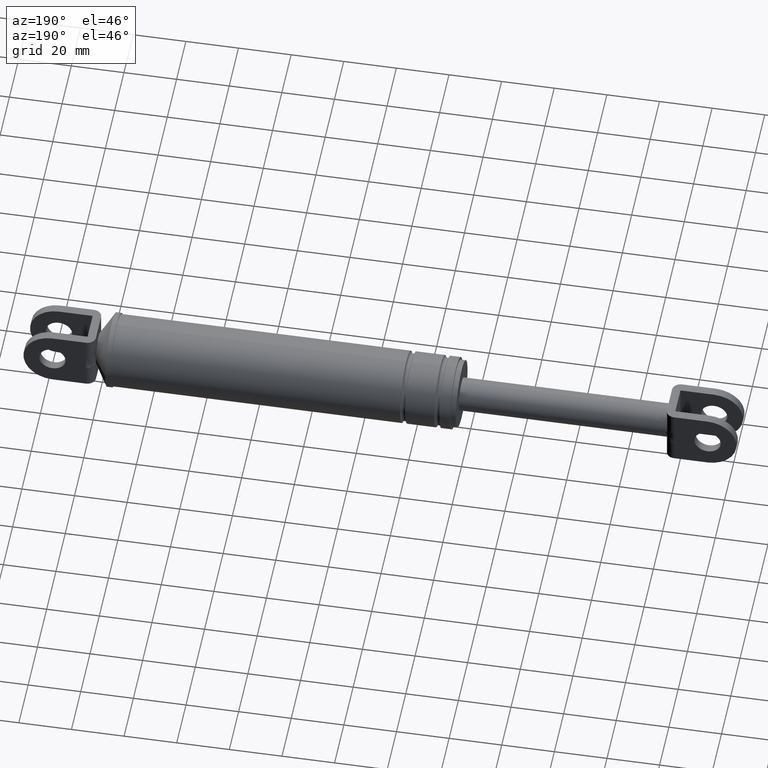
[diagram: clean part render]
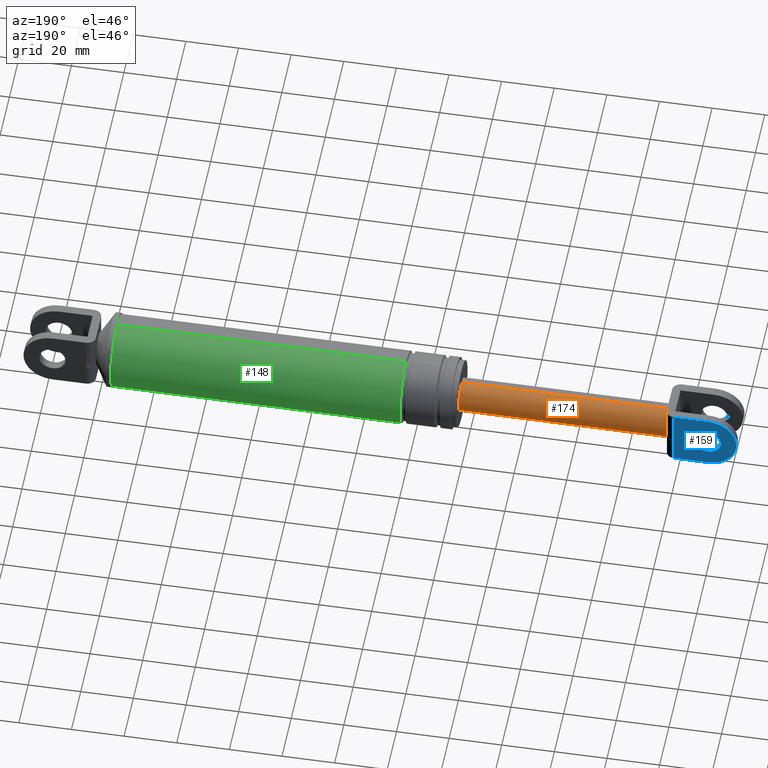
[diagram: same view with three faces highlighted in distinct colors, each labeled with its STEP entity id]
A machine part, auxiliary view with three faces highlighted in distinct colors.
Their STEP definitions:

[orange] entity #174 — the highlighted cylindrical surface (edge-blend (fillet) strip) has radius 6.25 mm, axis along (1, 0, 0).
#174=ADVANCED_FACE('',(#807),#806,.T.);
#806=CYLINDRICAL_SURFACE('',#1369,6.25000000000E+000);
#807=FACE_OUTER_BOUND('',#1370,.T.);
#1366=CARTESIAN_POINT('',(0.00000000000E+000,0.00000000000E+000,1.70729320502E+002));
#1367=DIRECTION('',(1.00000000000E+000,-0.00000000000E+000,-0.00000000000E+000));
#1368=DIRECTION('',(0.00000000000E+000,0.00000000000E+000,-1.00000000000E+000));
#1369=AXIS2_PLACEMENT_3D('',#1366,#1367,#1368);
#1370=EDGE_LOOP('',(#1688,#1689,#1690,#1691,#1692,#1693));
#1688=ORIENTED_EDGE('',*,*,#1850,.T.);
#1689=ORIENTED_EDGE('',*,*,#1860,.F.);
#1690=ORIENTED_EDGE('',*,*,#1823,.F.);
#1691=ORIENTED_EDGE('',*,*,#1844,.F.);
#1692=ORIENTED_EDGE('',*,*,#1816,.F.);
#1693=ORIENTED_EDGE('',*,*,#1861,.T.);
#1816=EDGE_CURVE('',#2630,#2637,#2638,.T.);
#1823=EDGE_CURVE('',#2684,#2685,#2686,.T.);
#1844=EDGE_CURVE('',#2637,#2684,#2824,.T.);
#1850=EDGE_CURVE('',#2855,#2854,#2862,.T.);
#1860=EDGE_CURVE('',#2685,#2854,#2926,.T.);
#1861=EDGE_CURVE('',#2630,#2855,#2932,.T.);
#2630=VERTEX_POINT('',#3433);
#2637=VERTEX_POINT('',#3438);
#2638=CIRCLE('',#3442,6.25000000000E+000);
#2684=VERTEX_POINT('',#3468);
#2685=VERTEX_POINT('',#3469);
#2686=CIRCLE('',#3473,6.25000000000E+000);
#2824=CIRCLE('',#3563,6.25000000000E+000);
#2854=VERTEX_POINT('',#3578);
#2855=VERTEX_POINT('',#3579);
#2862=CIRCLE('',#3587,6.25000000000E+000);
#2926=(BOUNDED_CURVE() B_SPLINE_CURVE(1,(#3620,#3621),.UNSPECIFIED.,.F.,.F.) B_SPLINE_CURVE_WITH_KNOTS((2,2),(8.33333332085E-002,9.16666666563E-001),.UNSPECIFIED.) CURVE() GEOMETRIC_REPRESENTATION_ITEM() RATIONAL_B_SPLINE_CURVE((1.00000000000E+000,1.00000000000E+000)) REPRESENTATION_ITEM('') );
#2932=(BOUNDED_CURVE() B_SPLINE_CURVE(1,(#3622,#3623),.UNSPECIFIED.,.F.,.F.) B_SPLINE_CURVE_WITH_KNOTS((2,2),(8.33333333333E-002,9.16666666667E-001),.UNSPECIFIED.) CURVE() GEOMETRIC_REPRESENTATION_ITEM() RATIONAL_B_SPLINE_CURVE((7.50000000000E-001,7.50000000000E-001)) REPRESENTATION_ITEM('') );
#3433=CARTESIAN_POINT('',(1.04446942787E+002,7.89135247850E-007,1.76979320502E+002));
#3438=CARTESIAN_POINT('',(1.04446942787E+002,5.49999700000E+000,1.73697911582E+002));
#3439=CARTESIAN_POINT('',(1.04446942787E+002,0.00000000000E+000,1.70729320502E+002));
#3440=DIRECTION('',(-1.00000000000E+000,0.00000000000E+000,0.00000000000E+000));
#3441=DIRECTION('',(-0.00000000000E+000,-0.00000000000E+000,-1.00000000000E+000));
#3442=AXIS2_PLACEMENT_3D('',#3439,#3440,#3441);
#3468=CARTESIAN_POINT('',(1.04446942787E+002,5.49999700000E+000,1.67760729422E+002));
#3469=CARTESIAN_POINT('',(1.04446942787E+002,-4.27327916267E-012,1.64479320502E+002));
#3470=CARTESIAN_POINT('',(1.04446942787E+002,0.00000000000E+000,1.70729320502E+002));
#3471=DIRECTION('',(-1.00000000000E+000,0.00000000000E+000,0.00000000000E+000));
#3472=DIRECTION('',(-0.00000000000E+000,8.79999520000E-001,-4.74974572793E-001));
#3473=AXIS2_PLACEMENT_3D('',#3470,#3471,#3472);
#3560=CARTESIAN_POINT('',(1.04446942787E+002,0.00000000000E+000,1.70729320502E+002));
#3561=DIRECTION('',(-1.00000000000E+000,0.00000000000E+000,0.00000000000E+000));
#3562=DIRECTION('',(-0.00000000000E+000,-0.00000000000E+000,-1.00000000000E+000));
#3563=AXIS2_PLACEMENT_3D('',#3560,#3561,#3562);
#3578=CARTESIAN_POINT('',(1.83446942787E+002,0.00000000000E+000,1.64479320502E+002));
#3579=CARTESIAN_POINT('',(1.83446942787E+002,0.00000000000E+000,1.76979320502E+002));
#3584=CARTESIAN_POINT('',(1.83446942787E+002,0.00000000000E+000,1.70729320502E+002));
#3585=DIRECTION('',(-1.00000000000E+000,0.00000000000E+000,0.00000000000E+000));
#3586=DIRECTION('',(0.00000000000E+000,-1.22460635382E-016,1.00000000000E+000));
#3587=AXIS2_PLACEMENT_3D('',#3584,#3585,#3586);
#3620=CARTESIAN_POINT('',(1.04446942775E+002,0.00000000000E+000,1.64479320502E+002));
#3621=CARTESIAN_POINT('',(1.83446942777E+002,0.00000000000E+000,1.64479320502E+002));
#3622=CARTESIAN_POINT('',(1.04446942787E+002,0.00000000000E+000,1.76979320502E+002));
#3623=CARTESIAN_POINT('',(1.83446942787E+002,0.00000000000E+000,1.76979320502E+002));

[blue] entity #159 — the highlighted planar face has unit normal (0, -1, 0).
#159=ADVANCED_FACE('',(#654,#655),#653,.F.);
#653=PLANE('',#1265);
#654=FACE_OUTER_BOUND('',#1266,.T.);
#655=FACE_BOUND('',#1267,.T.);
#1262=CARTESIAN_POINT('',(7.50580266010E+001,8.69999700000E+000,1.83929320502E+002));
#1263=DIRECTION('',(0.00000000000E+000,-1.00000000000E+000,0.00000000000E+000));
#1264=DIRECTION('',(0.00000000000E+000,0.00000000000E+000,-1.00000000000E+000));
#1265=AXIS2_PLACEMENT_3D('',#1262,#1263,#1264);
#1266=EDGE_LOOP('',(#1620,#1621,#1622,#1623,#1624,#1625));
#1267=EDGE_LOOP('',(#1626,#1627));
#1620=ORIENTED_EDGE('',*,*,#1808,.T.);
#1621=ORIENTED_EDGE('',*,*,#1837,.T.);
#1622=ORIENTED_EDGE('',*,*,#1838,.T.);
#1623=ORIENTED_EDGE('',*,*,#1839,.T.);
#1624=ORIENTED_EDGE('',*,*,#1834,.F.);
#1625=ORIENTED_EDGE('',*,*,#1840,.F.);
#1626=ORIENTED_EDGE('',*,*,#1841,.T.);
#1627=ORIENTED_EDGE('',*,*,#1842,.T.);
#1808=EDGE_CURVE('',#2583,#2576,#2584,.T.);
#1834=EDGE_CURVE('',#2752,#2759,#2760,.T.);
#1837=EDGE_CURVE('',#2576,#2778,#2779,.T.);
#1838=EDGE_CURVE('',#2778,#2785,#2786,.T.);
#1839=EDGE_CURVE('',#2785,#2759,#2792,.T.);
#1840=EDGE_CURVE('',#2583,#2752,#2798,.T.);
#1841=EDGE_CURVE('',#2804,#2805,#2806,.T.);
#1842=EDGE_CURVE('',#2805,#2804,#2812,.T.);
#2576=VERTEX_POINT('',#3402);
#2583=VERTEX_POINT('',#3407);
#2584=LINE('',#3408,#3409);
#2752=VERTEX_POINT('',#3509);
#2759=VERTEX_POINT('',#3513);
#2760=LINE('',#3514,#3515);
#2778=VERTEX_POINT('',#3524);
#2779=LINE('',#3525,#3526);
#2785=VERTEX_POINT('',#3528);
#2786=(BOUNDED_CURVE() B_SPLINE_CURVE(3,(#3529,#3530,#3531,#3532,#3533,#3534,#3535,#3536,#3537,#3538),.UNSPECIFIED.,.F.,.F.) B_SPLINE_CURVE_WITH_KNOTS((4,2,2,2,4),(0.00000000000E+000,1.48651353192E-003,2.97302706385E-003,4.45954059577E-003,5.94605412770E-003),.UNSPECIFIED.) CURVE() GEOMETRIC_REPRESENTATION_ITEM() RATIONAL_B_SPLINE_CURVE((1.00000000000E+000,1.00000000000E+000,1.00000000000E+000,1.00000000000E+000,1.00000000000E+000,1.00000000000E+000,1.00000000000E+000,1.00000000000E+000,1.00000000000E+000,1.00000000000E+000)) REPRESENTATION_ITEM('') );
#2792=LINE('',#3539,#3540);
#2798=CIRCLE('',#3545,1.10000000000E+001);
#2804=VERTEX_POINT('',#3546);
#2805=VERTEX_POINT('',#3547);
#2806=CIRCLE('',#3551,5.00000000000E+000);
#2812=CIRCLE('',#3555,5.00000000000E+000);
#3402=CARTESIAN_POINT('',(1.01246942787E+002,8.69999700000E+000,1.81729320502E+002));
#3407=CARTESIAN_POINT('',(8.84469418268E+001,8.69999700000E+000,1.81729320502E+002));
#3408=CARTESIAN_POINT('',(8.84469418268E+001,8.69999700000E+000,1.81729320502E+002));
#3409=VECTOR('',#3410,1.28000009599E+001);
#3410=DIRECTION('',(1.00000000000E+000,0.00000000000E+000,0.00000000000E+000));
#3509=CARTESIAN_POINT('',(8.84469418268E+001,8.69999700000E+000,1.59729320502E+002));
#3513=CARTESIAN_POINT('',(1.01246942787E+002,8.69999700000E+000,1.59729320502E+002));
#3514=CARTESIAN_POINT('',(8.84469418268E+001,8.69999700000E+000,1.59729320502E+002));
#3515=VECTOR('',#3516,1.28000009599E+001);
#3516=DIRECTION('',(1.00000000000E+000,0.00000000000E+000,0.00000000000E+000));
#3524=CARTESIAN_POINT('',(1.01246942787E+002,8.69999700000E+000,1.73697911582E+002));
#3525=CARTESIAN_POINT('',(1.01246942787E+002,8.69999700000E+000,1.81729320502E+002));
#3526=VECTOR('',#3527,8.03140892004E+000);
#3527=DIRECTION('',(0.00000000000E+000,0.00000000000E+000,-1.00000000000E+000));
#3528=CARTESIAN_POINT('',(1.01246942787E+002,8.69999700000E+000,1.67760729422E+002));
#3529=CARTESIAN_POINT('',(1.01246942787E+002,8.69999700000E+000,1.73697911582E+002));
#3530=CARTESIAN_POINT('',(1.01246942787E+002,8.69999700000E+000,1.73202405791E+002));
#3531=CARTESIAN_POINT('',(1.01272536968E+002,8.69999700000E+000,1.72707658474E+002));
#3532=CARTESIAN_POINT('',(1.01317789454E+002,8.69999700000E+000,1.71718092325E+002));
#3533=CARTESIAN_POINT('',(1.01336104644E+002,8.69999700000E+000,1.71222857338E+002));
#3534=CARTESIAN_POINT('',(1.01336046205E+002,8.69999700000E+000,1.70233089775E+002));
#3535=CARTESIAN_POINT('',(1.01317706517E+002,8.69999700000E+000,1.69738629714E+002));
#3536=CARTESIAN_POINT('',(1.01272482967E+002,8.69999700000E+000,1.68749907314E+002));
#3537=CARTESIAN_POINT('',(1.01246942787E+002,8.69999700000E+000,1.68255613880E+002));
#3538=CARTESIAN_POINT('',(1.01246942787E+002,8.69999700000E+000,1.67760729422E+002));
#3539=CARTESIAN_POINT('',(1.01246942787E+002,8.69999700000E+000,1.67760729422E+002));
#3540=VECTOR('',#3541,8.03140892004E+000);
#3541=DIRECTION('',(0.00000000000E+000,0.00000000000E+000,-1.00000000000E+000));
#3542=CARTESIAN_POINT('',(8.84469427867E+001,8.69999700000E+000,1.70729320502E+002));
#3543=DIRECTION('',(0.00000000000E+000,-1.00000000000E+000,0.00000000000E+000));
#3544=DIRECTION('',(-0.00000000000E+000,-0.00000000000E+000,-1.00000000000E+000));
#3545=AXIS2_PLACEMENT_3D('',#3542,#3543,#3544);
#3546=CARTESIAN_POINT('',(8.84469427867E+001,8.69999700000E+000,1.75729320502E+002));
#3547=CARTESIAN_POINT('',(8.84469427867E+001,8.69999700000E+000,1.65729320502E+002));
#3548=CARTESIAN_POINT('',(8.84469427867E+001,8.69999700000E+000,1.70729320502E+002));
#3549=DIRECTION('',(-0.00000000000E+000,-1.00000000000E+000,0.00000000000E+000));
#3550=DIRECTION('',(-1.22460635382E-016,0.00000000000E+000,1.00000000000E+000));
#3551=AXIS2_PLACEMENT_3D('',#3548,#3549,#3550);
#3552=CARTESIAN_POINT('',(8.84469427867E+001,8.69999700000E+000,1.70729320502E+002));
#3553=DIRECTION('',(-0.00000000000E+000,-1.00000000000E+000,0.00000000000E+000));
#3554=DIRECTION('',(-1.22460635382E-016,0.00000000000E+000,1.00000000000E+000));
#3555=AXIS2_PLACEMENT_3D('',#3552,#3553,#3554);

[green] entity #148 — the highlighted cylindrical surface (partial cylindrical patch) has radius 13.7 mm, axis along (1, 0, 0).
#148=ADVANCED_FACE('',(#543),#542,.T.);
#542=CYLINDRICAL_SURFACE('',#1183,1.37000000000E+001);
#543=FACE_OUTER_BOUND('',#1184,.T.);
#1180=CARTESIAN_POINT('',(0.00000000000E+000,0.00000000000E+000,1.70729320502E+002));
#1181=DIRECTION('',(1.00000000000E+000,-0.00000000000E+000,-0.00000000000E+000));
#1182=DIRECTION('',(0.00000000000E+000,0.00000000000E+000,-1.00000000000E+000));
#1183=AXIS2_PLACEMENT_3D('',#1180,#1181,#1182);
#1184=EDGE_LOOP('',(#1558,#1559,#1560,#1561));
#1558=ORIENTED_EDGE('',*,*,#1763,.T.);
#1559=ORIENTED_EDGE('',*,*,#1796,.F.);
#1560=ORIENTED_EDGE('',*,*,#1782,.F.);
#1561=ORIENTED_EDGE('',*,*,#1797,.T.);
#1763=EDGE_CURVE('',#2281,#2280,#2288,.T.);
#1782=EDGE_CURVE('',#2410,#2411,#2412,.T.);
#1796=EDGE_CURVE('',#2411,#2280,#2502,.T.);
#1797=EDGE_CURVE('',#2410,#2281,#2508,.T.);
#2280=VERTEX_POINT('',#3218);
#2281=VERTEX_POINT('',#3219);
#2288=CIRCLE('',#3227,1.37000000000E+001);
#2410=VERTEX_POINT('',#3294);
#2411=VERTEX_POINT('',#3295);
#2412=CIRCLE('',#3299,1.37000000000E+001);
#2502=(BOUNDED_CURVE() B_SPLINE_CURVE(1,(#3354,#3355),.UNSPECIFIED.,.F.,.F.) B_SPLINE_CURVE_WITH_KNOTS((2,2),(7.69230771804E-002,9.23076923214E-001),.UNSPECIFIED.) CURVE() GEOMETRIC_REPRESENTATION_ITEM() RATIONAL_B_SPLINE_CURVE((1.00000000000E+000,1.00000000000E+000)) REPRESENTATION_ITEM('') );
#2508=(BOUNDED_CURVE() B_SPLINE_CURVE(1,(#3356,#3357),.UNSPECIFIED.,.F.,.F.) B_SPLINE_CURVE_WITH_KNOTS((2,2),(7.69230769231E-002,9.23076923077E-001),.UNSPECIFIED.) CURVE() GEOMETRIC_REPRESENTATION_ITEM() RATIONAL_B_SPLINE_CURVE((7.50000000000E-001,7.50000000000E-001)) REPRESENTATION_ITEM('') );
#3218=CARTESIAN_POINT('',(3.14446942787E+002,0.00000000000E+000,1.57029320502E+002));
#3219=CARTESIAN_POINT('',(3.14446942787E+002,0.00000000000E+000,1.84429320502E+002));
#3224=CARTESIAN_POINT('',(3.14446942787E+002,0.00000000000E+000,1.70729320502E+002));
#3225=DIRECTION('',(-1.00000000000E+000,0.00000000000E+000,0.00000000000E+000));
#3226=DIRECTION('',(0.00000000000E+000,-1.22460635382E-016,1.00000000000E+000));
#3227=AXIS2_PLACEMENT_3D('',#3224,#3225,#3226);
#3294=CARTESIAN_POINT('',(2.04446942787E+002,0.00000000000E+000,1.84429320502E+002));
#3295=CARTESIAN_POINT('',(2.04446942787E+002,0.00000000000E+000,1.57029320502E+002));
#3296=CARTESIAN_POINT('',(2.04446942787E+002,0.00000000000E+000,1.70729320502E+002));
#3297=DIRECTION('',(-1.00000000000E+000,0.00000000000E+000,0.00000000000E+000));
#3298=DIRECTION('',(0.00000000000E+000,-1.22460635382E-016,1.00000000000E+000));
#3299=AXIS2_PLACEMENT_3D('',#3296,#3297,#3298);
#3354=CARTESIAN_POINT('',(2.04446942820E+002,0.00000000000E+000,1.57029320502E+002));
#3355=CARTESIAN_POINT('',(3.14446942805E+002,0.00000000000E+000,1.57029320502E+002));
#3356=CARTESIAN_POINT('',(2.04446942787E+002,-5.92118946467E-016,1.84429320502E+002));
#3357=CARTESIAN_POINT('',(3.14446942787E+002,-5.92118946467E-016,1.84429320502E+002));